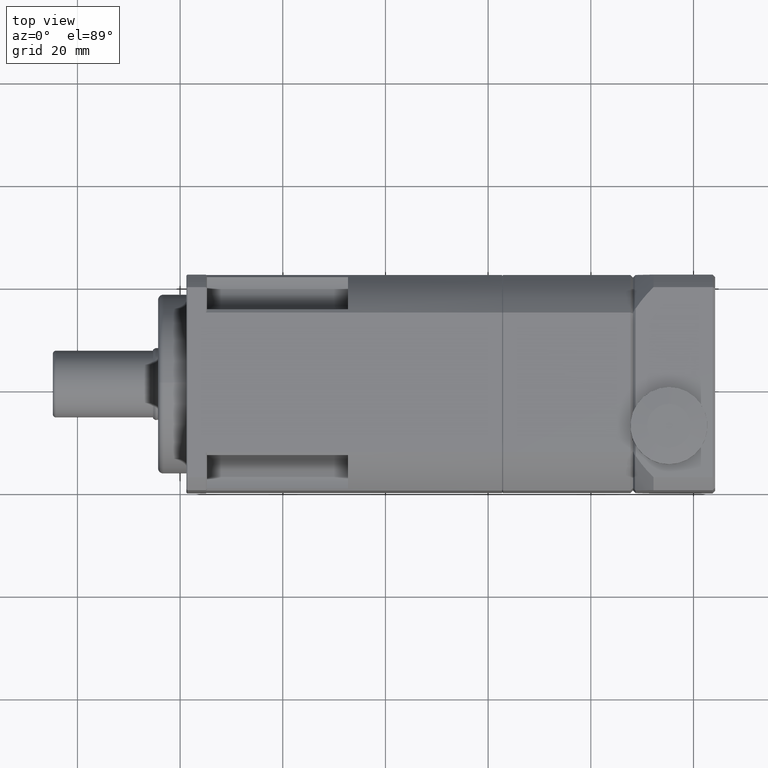
[diagram: clean part render]
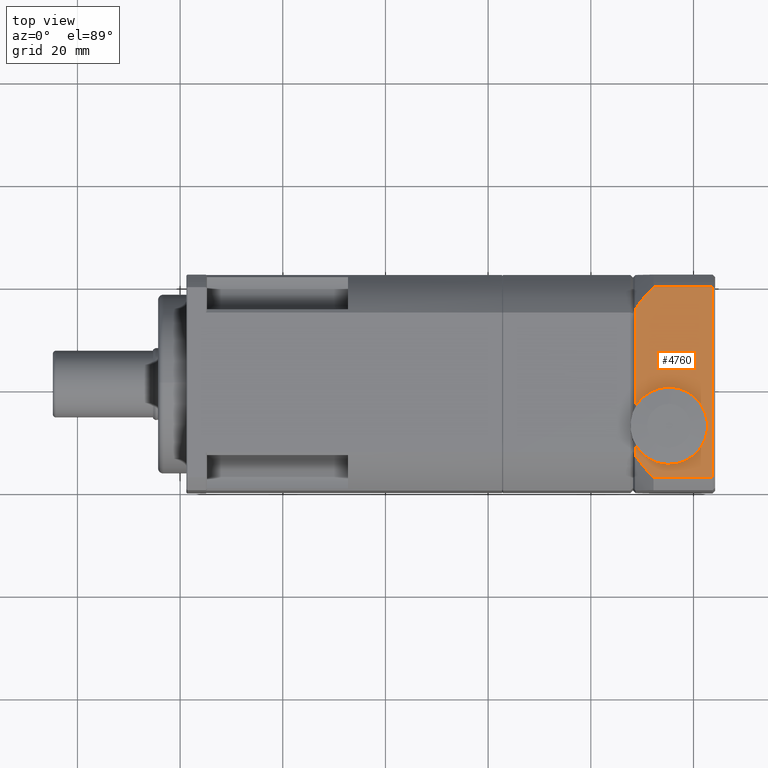
[diagram: same view with one face highlighted and labeled with its STEP entity id]
A machine part, top view. The second image highlights one B-rep face of the part: STEP entity #4760.
In plain terms, the highlighted planar face has unit normal (0, 0, 1).
Its self-contained STEP definition (entity closure, byte-faithful):
#171=LINE('',#7396,#405);
#182=LINE('',#7474,#416);
#183=LINE('',#7478,#417);
#184=LINE('',#7481,#418);
#185=LINE('',#7484,#419);
#405=VECTOR('',#5918,37.0405183549043);
#416=VECTOR('',#5971,11.5014761628236);
#417=VECTOR('',#5976,2.09981307479306);
#418=VECTOR('',#5979,11.5014761628236);
#419=VECTOR('',#5982,19.099813074793);
#728=PLANE('',#5164);
#1066=FACE_OUTER_BOUND('',#1428,.T.);
#1428=EDGE_LOOP('',(#3352,#3353,#3354,#3355,#3356,#3357,#3358,#3359));
#1819=CIRCLE('',#5110,7.5);
#1849=CIRCLE('',#5165,25.740404037233);
#1850=CIRCLE('',#5166,25.740404037233);
#2122=VERTEX_POINT('',#7316);
#2123=VERTEX_POINT('',#7317);
#2152=VERTEX_POINT('',#7390);
#2153=VERTEX_POINT('',#7395);
#2171=VERTEX_POINT('',#7473);
#2172=VERTEX_POINT('',#7477);
#2173=VERTEX_POINT('',#7480);
#2174=VERTEX_POINT('',#7482);
#2573=EDGE_CURVE('',#2122,#2123,#1819,.T.);
#2604=EDGE_CURVE('',#2152,#2153,#171,.T.);
#2633=EDGE_CURVE('',#2171,#2153,#182,.T.);
#2635=EDGE_CURVE('',#2172,#2123,#183,.T.);
#2636=EDGE_CURVE('',#2172,#2171,#1849,.T.);
#2637=EDGE_CURVE('',#2152,#2173,#184,.T.);
#2638=EDGE_CURVE('',#2173,#2174,#1850,.T.);
#2639=EDGE_CURVE('',#2122,#2174,#185,.T.);
#3352=ORIENTED_EDGE('',*,*,#2573,.T.);
#3353=ORIENTED_EDGE('',*,*,#2635,.F.);
#3354=ORIENTED_EDGE('',*,*,#2636,.T.);
#3355=ORIENTED_EDGE('',*,*,#2633,.T.);
#3356=ORIENTED_EDGE('',*,*,#2604,.F.);
#3357=ORIENTED_EDGE('',*,*,#2637,.T.);
#3358=ORIENTED_EDGE('',*,*,#2638,.T.);
#3359=ORIENTED_EDGE('',*,*,#2639,.F.);
#4760=ADVANCED_FACE('',(#1066),#728,.T.);
#5110=AXIS2_PLACEMENT_3D('',#7318,#5842,#5843);
#5164=AXIS2_PLACEMENT_3D('',#7476,#5974,#5975);
#5165=AXIS2_PLACEMENT_3D('',#7479,#5977,#5978);
#5166=AXIS2_PLACEMENT_3D('',#7483,#5980,#5981);
#5842=DIRECTION('center_axis',(-1.93008699861478E-15,-9.82216953274032E-15,
-1.));
#5843=DIRECTION('ref_axis',(9.64466294450084E-15,1.,-9.81709773335512E-15));
#5918=DIRECTION('',(1.09392228088446E-16,-1.,9.82216953274032E-15));
#5971=DIRECTION('',(1.,1.09392228088427E-16,-1.93008699861479E-15));
#5974=DIRECTION('center_axis',(1.93008699861478E-15,9.82216953274032E-15,
1.));
#5975=DIRECTION('ref_axis',(0.,1.,-9.85878045867139E-15));
#5976=DIRECTION('',(-1.09392228088446E-16,1.,-9.82216953274032E-15));
#5977=DIRECTION('center_axis',(1.93008699861478E-15,9.82216953274032E-15,
1.));
#5978=DIRECTION('ref_axis',(-1.09392228088446E-16,1.,-9.82216953274032E-15));
#5979=DIRECTION('',(-1.,-1.09392228088427E-16,1.93008699861479E-15));
#5980=DIRECTION('center_axis',(1.93008699861478E-15,9.82216953274032E-15,
1.));
#5981=DIRECTION('ref_axis',(-1.09392228088446E-16,1.,-9.82216953274032E-15));
#5982=DIRECTION('',(-1.09392228088446E-16,1.,-9.82216953274032E-15));
#7316=CARTESIAN_POINT('',(48.7159950143863,-43.6258277451382,-6.34775529413332));
#7317=CARTESIAN_POINT('',(48.7159950143863,-51.1091425186862,-6.34775529413324));
#7318=CARTESIAN_POINT('Origin',(55.2159950143863,-47.3674851319122,-6.34775529413329));
#7390=CARTESIAN_POINT('',(63.7159950143863,-20.3472259544601,-6.34775529413357));
#7395=CARTESIAN_POINT('',(63.7159950143863,-57.3877443093644,-6.34775529413321));
#7396=CARTESIAN_POINT('',(63.7159950143863,-49.3674851319123,-6.34775529413329));
#7473=CARTESIAN_POINT('',(52.2145188515627,-57.3877443093644,-6.34775529413319));
#7474=CARTESIAN_POINT('',(64.2159950143863,-57.3877443093644,-6.34775529413321));
#7476=CARTESIAN_POINT('Origin',(64.2159950143863,-59.8674851319123,-6.34775529413319));
#7477=CARTESIAN_POINT('',(48.7159950143863,-53.2089555934793,-6.34775529413322));
#7478=CARTESIAN_POINT('',(48.7159950143863,-49.3674851319123,-6.34775529413326));
#7479=CARTESIAN_POINT('Origin',(70.0909950143863,-38.8674851319122,-6.34775529413341));
#7480=CARTESIAN_POINT('',(52.2145188515627,-20.3472259544601,-6.34775529413355));
#7481=CARTESIAN_POINT('',(64.2159950143863,-20.3472259544601,-6.34775529413357));
#7482=CARTESIAN_POINT('',(48.7159950143863,-24.5260146703452,-6.3477552941335));
#7483=CARTESIAN_POINT('Origin',(70.0909950143863,-38.8674851319122,-6.34775529413341));
#7484=CARTESIAN_POINT('',(48.7159950143863,-49.3674851319123,-6.34775529413326));